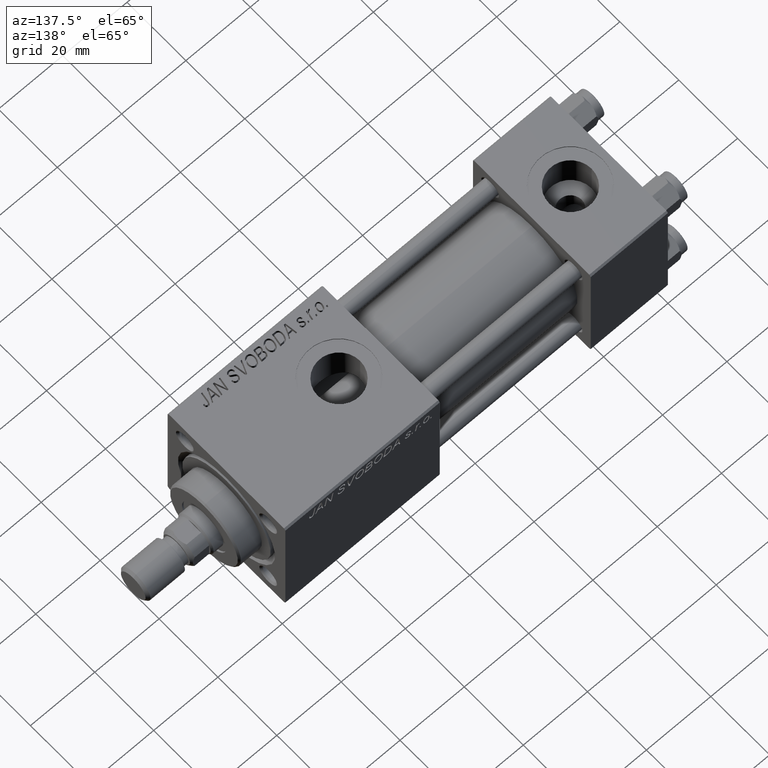
[diagram: clean part render]
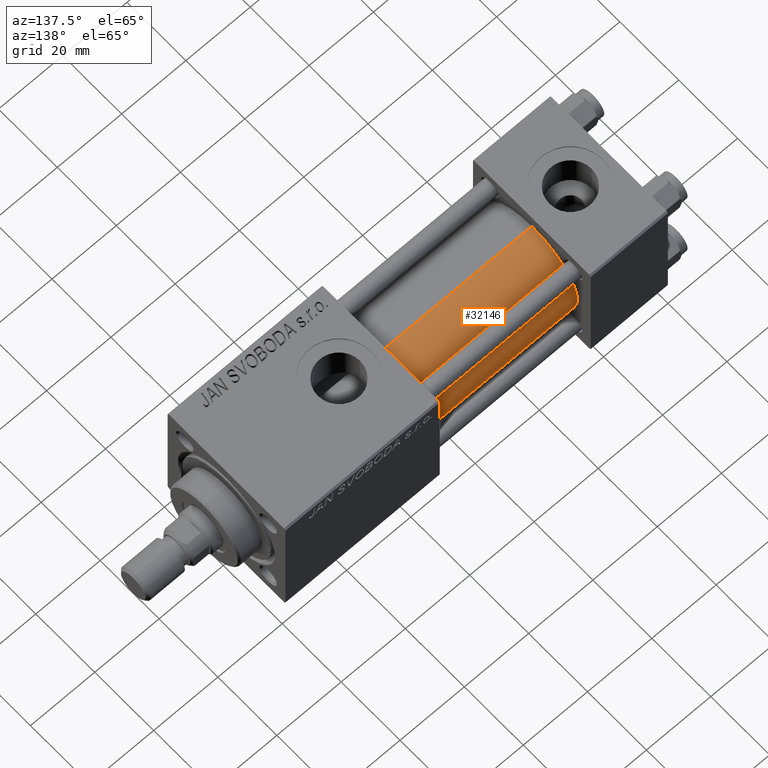
[diagram: same view with one face highlighted and labeled with its STEP entity id]
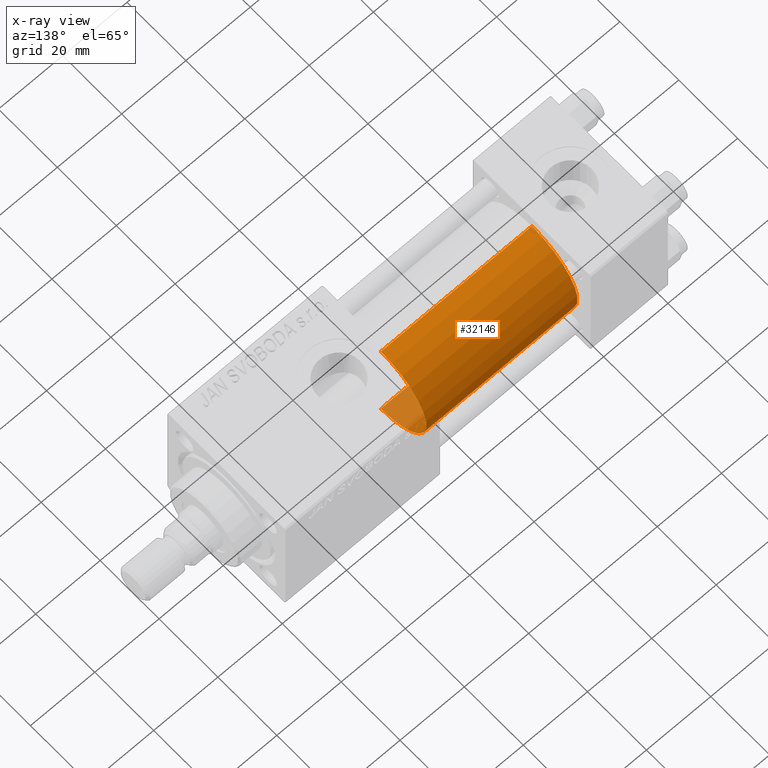
[diagram: x-ray of the same camera — body ghosted, the highlighted face saturated]
A machine part, auxiliary view. The second image highlights one B-rep face of the part: STEP entity #32146.
The next image is the same camera in x-ray: the body ghosted, the highlighted face saturated — about 6% of this face is hidden behind the body in this view.
In plain terms, the highlighted cylindrical surface (partial cylindrical patch) has radius 15.5 mm, axis along (-1, -0, -0).
Its self-contained STEP definition (entity closure, byte-faithful):
#4659 = EDGE_CURVE ( 'NONE', #12665, #35717, #6467, .T. ) ;
#6163 = DIRECTION ( 'NONE',  ( -1.000000000000000000, -0.000000000000000000, -0.000000000000000000 ) ) ;
#6467 = LINE ( 'NONE', #29602, #30351 ) ;
#7591 = CARTESIAN_POINT ( 'NONE',  ( 24.00000000000000000, -2.602085213965210642E-15, 15.50000000000000000 ) ) ;
#8630 = CARTESIAN_POINT ( 'NONE',  ( 24.00000000000000000, -2.602085213965210642E-15, 0.000000000000000000 ) ) ;
#11567 = CIRCLE ( 'NONE', #42969, 15.50000000000000000 ) ;
#12665 = VERTEX_POINT ( 'NONE', #51442 ) ;
#14119 = CARTESIAN_POINT ( 'NONE',  ( 71.00000000000001421, -2.602085213965210642E-15, 0.000000000000000000 ) ) ;
#14152 = CARTESIAN_POINT ( 'NONE',  ( 71.00000000000001421, -2.602085213965210642E-15, 0.000000000000000000 ) ) ;
#14507 = EDGE_CURVE ( 'NONE', #33513, #12665, #15280, .T. ) ;
#15280 = CIRCLE ( 'NONE', #27164, 15.50000000000000000 ) ;
#16208 = EDGE_LOOP ( 'NONE', ( #18083, #36080, #33649, #44660 ) ) ;
#18083 = ORIENTED_EDGE ( 'NONE', *, *, #14507, .F. ) ;
#19369 = CARTESIAN_POINT ( 'NONE',  ( 24.00000000000000000, -7.038826752868131828E-16, -15.50000000000000000 ) ) ;
#26362 = DIRECTION ( 'NONE',  ( 0.000000000000000000, 0.000000000000000000, 1.000000000000000000 ) ) ;
#26872 = AXIS2_PLACEMENT_3D ( 'NONE', #14119, #6163, #26362 ) ;
#27164 = AXIS2_PLACEMENT_3D ( 'NONE', #14152, #30377, #46614 ) ;
#29602 = CARTESIAN_POINT ( 'NONE',  ( 71.00000000000001421, -2.602085213965210642E-15, 15.50000000000000000 ) ) ;
#29739 = VECTOR ( 'NONE', #34177, 1000.000000000000000 ) ;
#29874 = DIRECTION ( 'NONE',  ( -1.000000000000000000, -0.000000000000000000, -0.000000000000000000 ) ) ;
#30351 = VECTOR ( 'NONE', #29874, 1000.000000000000000 ) ;
#30377 = DIRECTION ( 'NONE',  ( 1.000000000000000000, 0.000000000000000000, 0.000000000000000000 ) ) ;
#32146 = ADVANCED_FACE ( 'NONE', ( #51363 ), #34072, .T. ) ;
#33513 = VERTEX_POINT ( 'NONE', #38547 ) ;
#33649 = ORIENTED_EDGE ( 'NONE', *, *, #35837, .T. ) ;
#34072 = CYLINDRICAL_SURFACE ( 'NONE', #26872, 15.50000000000000000 ) ;
#34177 = DIRECTION ( 'NONE',  ( -1.000000000000000000, -0.000000000000000000, -0.000000000000000000 ) ) ;
#35717 = VERTEX_POINT ( 'NONE', #7591 ) ;
#35837 = EDGE_CURVE ( 'NONE', #36253, #35717, #11567, .T. ) ;
#36080 = ORIENTED_EDGE ( 'NONE', *, *, #47903, .T. ) ;
#36253 = VERTEX_POINT ( 'NONE', #19369 ) ;
#38442 = CARTESIAN_POINT ( 'NONE',  ( 71.00000000000001421, -7.038826752868131828E-16, -15.50000000000000000 ) ) ;
#38547 = CARTESIAN_POINT ( 'NONE',  ( 71.00000000000001421, -7.038826752868131828E-16, -15.50000000000000000 ) ) ;
#40284 = DIRECTION ( 'NONE',  ( 0.000000000000000000, 0.000000000000000000, 1.000000000000000000 ) ) ;
#42969 = AXIS2_PLACEMENT_3D ( 'NONE', #8630, #44284, #40284 ) ;
#44284 = DIRECTION ( 'NONE',  ( 1.000000000000000000, 0.000000000000000000, 0.000000000000000000 ) ) ;
#44660 = ORIENTED_EDGE ( 'NONE', *, *, #4659, .F. ) ;
#46614 = DIRECTION ( 'NONE',  ( 0.000000000000000000, 0.000000000000000000, -1.000000000000000000 ) ) ;
#47903 = EDGE_CURVE ( 'NONE', #33513, #36253, #51462, .T. ) ;
#51363 = FACE_OUTER_BOUND ( 'NONE', #16208, .T. ) ;
#51442 = CARTESIAN_POINT ( 'NONE',  ( 71.00000000000001421, -2.602085213965210642E-15, 15.50000000000000000 ) ) ;
#51462 = LINE ( 'NONE', #38442, #29739 ) ;